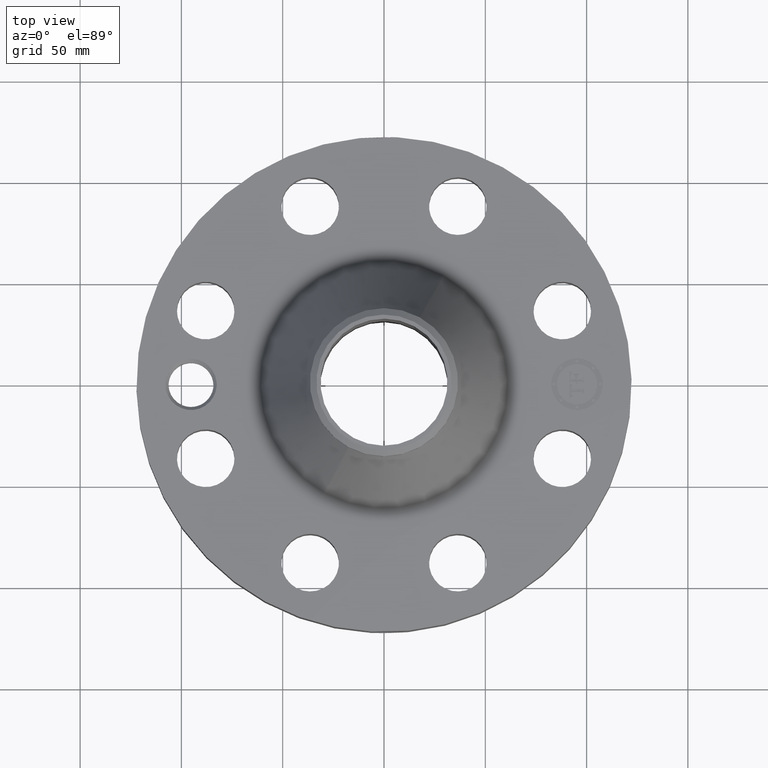
[diagram: clean part render]
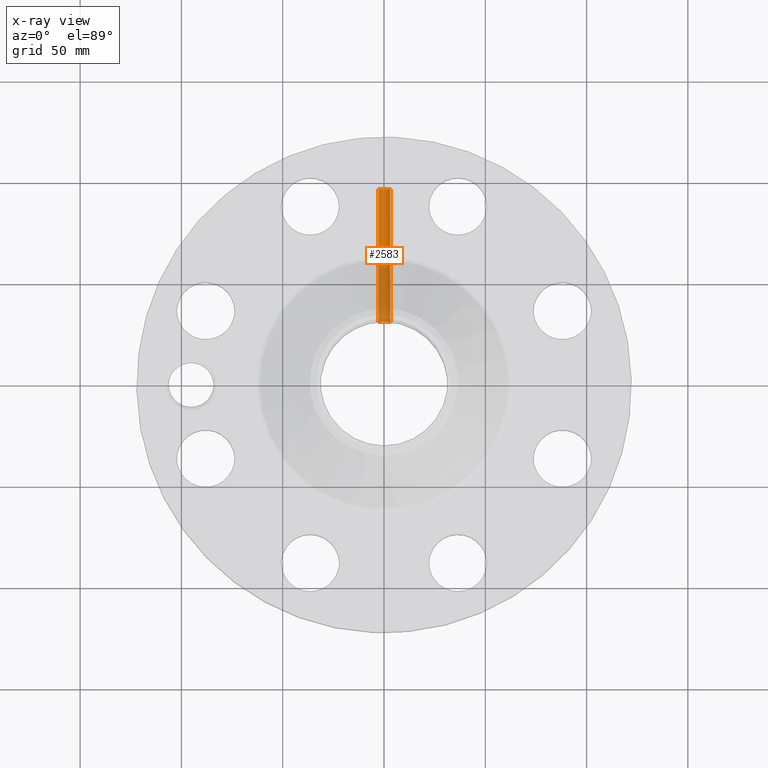
[diagram: x-ray — body ghosted, one internal face saturated and labeled with its STEP entity id]
A machine part, top view, then the same camera in x-ray: the body is ghosted and one INTERNAL B-rep face — a face not visible from any outside direction — is saturated and labeled: STEP entity #2583.
In plain terms, the highlighted cylindrical surface (edge-blend (fillet) strip) has radius 3.175 mm, axis along (-0, -1, 0).
Its self-contained STEP definition (entity closure, byte-faithful):
#2544=AXIS2_PLACEMENT_3D('Cylinder Axis2P3D',#2541,#2542,#2543) ;
#2574=AXIS2_PLACEMENT_3D('Circle Axis2P3D',#2572,#2573,$) ;
#1359=CARTESIAN_POINT('Control Point',(-0.109697820237,1.22961645981,0.880071807678)) ;
#1360=CARTESIAN_POINT('Control Point',(-0.103060754703,1.2302085726,0.867922740711)) ;
#1361=CARTESIAN_POINT('Control Point',(-0.0947439558045,1.23090540221,0.856696444235)) ;
#1362=CARTESIAN_POINT('Control Point',(-0.0849163370718,1.23164628474,0.846698846515)) ;
#1363=CARTESIAN_POINT('Control Point',(-0.0516790100631,1.23375368765,0.821181117232)) ;
#1364=CARTESIAN_POINT('Control Point',(-0.00988471502264,1.23496616819,0.810628917419)) ;
#1365=CARTESIAN_POINT('Control Point',(0.0193498984389,1.23483636274,0.811705716323)) ;
#1366=CARTESIAN_POINT('Control Point',(0.0602724641005,1.23333252326,0.825297419783)) ;
#1367=CARTESIAN_POINT('Control Point',(0.0915614927517,1.23116135472,0.853204688418)) ;
#1368=CARTESIAN_POINT('Control Point',(0.100642715656,1.23042853514,0.863920318434)) ;
#1369=CARTESIAN_POINT('Control Point',(0.120590039966,1.22867082139,0.895490628523)) ;
#1370=CARTESIAN_POINT('Control Point',(0.128081277399,1.22782736432,0.932745795779)) ;
#1371=CARTESIAN_POINT('Control Point',(0.127185080444,1.22793040361,0.956762148458)) ;
#1372=CARTESIAN_POINT('Control Point',(0.120785294946,1.22862731251,0.979632706009)) ;
#1373=CARTESIAN_POINT('Control Point',(0.109697820237,1.22961645981,0.99992819233)) ;
#1374=CARTESIAN_POINT('Vertex',(-0.109697820237,1.22961645981,0.880071807678)) ;
#1376=CARTESIAN_POINT('Vertex',(0.109697820237,1.22961645981,0.99992819233)) ;
#2541=CARTESIAN_POINT('Axis2P3D Location',(-3.4974886485E-015,4.80606299215,0.940000000004)) ;
#2546=CARTESIAN_POINT('Line Origine',(-0.109697820237,2.52050435273,0.880071807678)) ;
#2550=CARTESIAN_POINT('Vertex',(-0.109697820237,3.81321662098,0.880071807678)) ;
#2557=CARTESIAN_POINT('Vertex',(0.109697820237,3.81321662098,0.99992819233)) ;
#2560=CARTESIAN_POINT('Line Origine',(0.109697820237,2.52050435273,0.99992819233)) ;
#2572=CARTESIAN_POINT('Axis2P3D Location',(-3.67987156808E-015,3.81321662098,0.940000000004)) ;
#2542=DIRECTION('Axis2P3D Direction',(-7.2321661367E-018,-0.0393700787402,0.)) ;
#2543=DIRECTION('Axis2P3D XDirection',(-0.0345504945627,6.34682288627E-018,-0.0188750212048)) ;
#2547=DIRECTION('Vector Direction',(-7.45467909909E-018,-0.0393700787402,0.)) ;
#2561=DIRECTION('Vector Direction',(-7.45467909909E-018,-0.0393700787402,0.)) ;
#2573=DIRECTION('Axis2P3D Direction',(-7.2321661367E-018,-0.0393700787402,0.)) ;
#2548=VECTOR('Line Direction',#2547,0.0393700787402) ;
#2562=VECTOR('Line Direction',#2561,0.0393700787402) ;
#2578=ORIENTED_EDGE('',*,*,#1378,.T.) ;
#2579=ORIENTED_EDGE('',*,*,#2564,.T.) ;
#2580=ORIENTED_EDGE('',*,*,#2576,.F.) ;
#2581=ORIENTED_EDGE('',*,*,#2552,.F.) ;
#2583=ADVANCED_FACE('PartBody',(#2582),#2545,.F.) ;
#1358=B_SPLINE_CURVE_WITH_KNOTS('',5,(#1359,#1360,#1361,#1362,#1363,#1364,#1365,#1366,#1367,#1368,#1369,#1370,#1371,#1372,#1373),.UNSPECIFIED.,.F.,.U.,(6,3,3,3,6),(0.,2.48868847835,7.46428276896,9.95756086922,14.11501124),.UNSPECIFIED.) ;
#2575=CIRCLE('generated circle',#2574,0.125000000001) ;
#2545=CYLINDRICAL_SURFACE('generated cylinder',#2544,0.125000000001) ;
#1378=EDGE_CURVE('',#1375,#1377,#1358,.T.) ;
#2552=EDGE_CURVE('',#1375,#2551,#2549,.F.) ;
#2564=EDGE_CURVE('',#1377,#2558,#2563,.F.) ;
#2576=EDGE_CURVE('',#2551,#2558,#2575,.T.) ;
#2577=EDGE_LOOP('',(#2578,#2579,#2580,#2581)) ;
#2582=FACE_OUTER_BOUND('',#2577,.T.) ;
#2549=LINE('Line',#2546,#2548) ;
#2563=LINE('Line',#2560,#2562) ;
#1375=VERTEX_POINT('',#1374) ;
#1377=VERTEX_POINT('',#1376) ;
#2551=VERTEX_POINT('',#2550) ;
#2558=VERTEX_POINT('',#2557) ;